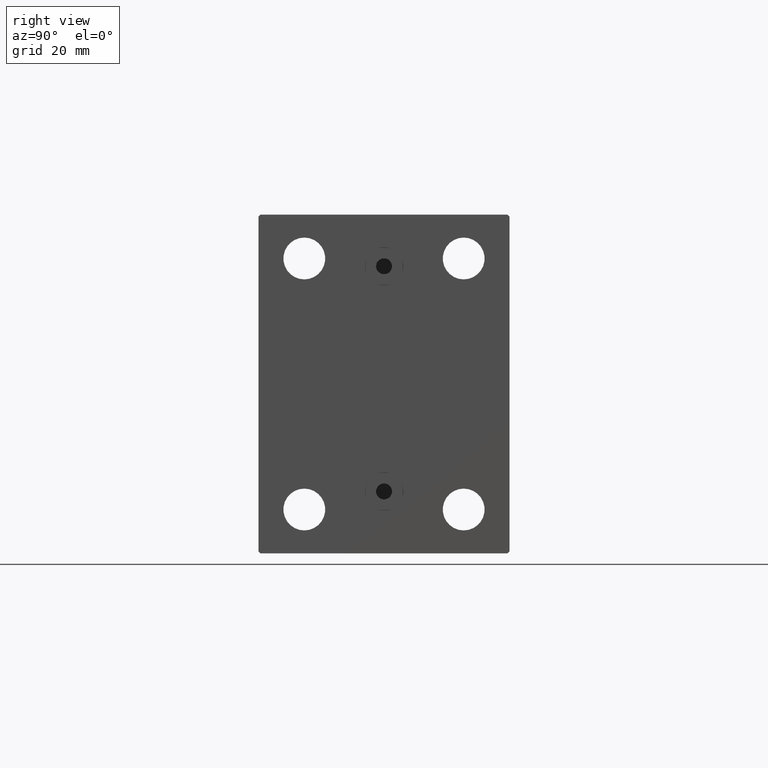
[diagram: clean part render]
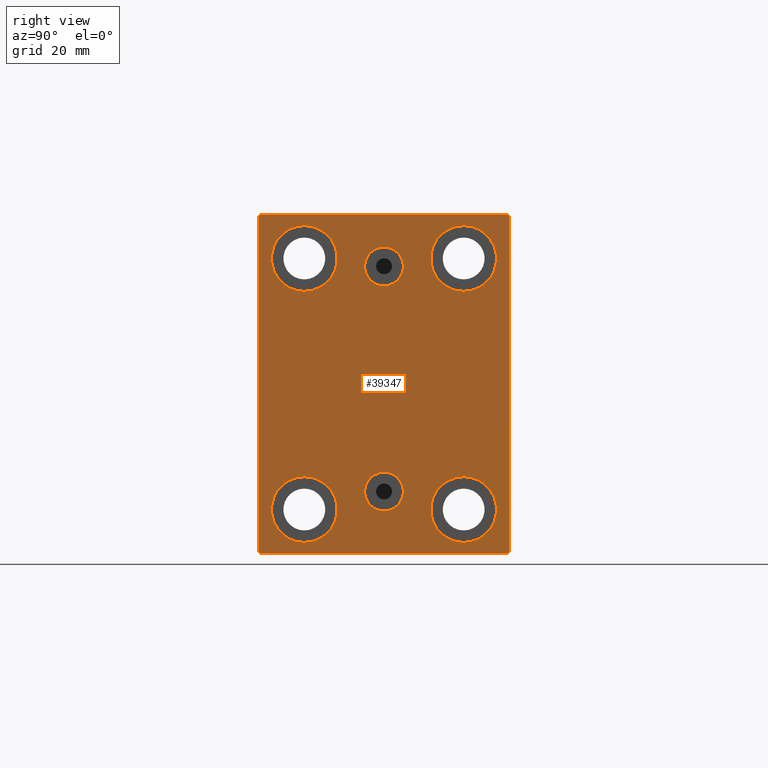
[diagram: same view with one face highlighted and labeled with its STEP entity id]
A machine part, right view. The second image highlights one B-rep face of the part: STEP entity #39347.
In plain terms, the highlighted planar face has unit normal (1, 0, 0).
Its self-contained STEP definition (entity closure, byte-faithful):
#455 = EDGE_CURVE ( 'NONE', #29882, #9703, #24271, .T. ) ;
#777 = VECTOR ( 'NONE', #39232, 1000.000000000000000 ) ;
#850 = VERTEX_POINT ( 'NONE', #5511 ) ;
#991 = ORIENTED_EDGE ( 'NONE', *, *, #8198, .T. ) ;
#1029 = EDGE_LOOP ( 'NONE', ( #33535, #16204, #42854, #6685, #42573, #3945, #6355, #30336 ) ) ;
#1147 = EDGE_CURVE ( 'NONE', #30440, #29882, #1790, .T. ) ;
#1790 = LINE ( 'NONE', #4325, #45080 ) ;
#1816 = DIRECTION ( 'NONE',  ( 0.000000000000000000, 0.000000000000000000, -1.000000000000000000 ) ) ;
#1879 = DIRECTION ( 'NONE',  ( -0.000000000000000000, 0.7071067811865474617, 0.7071067811865474617 ) ) ;
#1990 = CARTESIAN_POINT ( 'NONE',  ( 103.0000000000000000, -3.571693674697836683E-15, 24.64000000000001123 ) ) ;
#2532 = EDGE_CURVE ( 'NONE', #44313, #7735, #12869, .T. ) ;
#2791 = EDGE_CURVE ( 'NONE', #10545, #32653, #32359, .T. ) ;
#3060 = DIRECTION ( 'NONE',  ( 0.000000000000000000, 0.000000000000000000, 1.000000000000000000 ) ) ;
#3307 = CARTESIAN_POINT ( 'NONE',  ( 103.0000000000000000, 0.000000000000000000, 0.000000000000000000 ) ) ;
#3560 = EDGE_LOOP ( 'NONE', ( #7255, #17298 ) ) ;
#3589 = AXIS2_PLACEMENT_3D ( 'NONE', #39809, #26032, #43704 ) ;
#3945 = ORIENTED_EDGE ( 'NONE', *, *, #22882, .T. ) ;
#4117 = CIRCLE ( 'NONE', #17288, 4.859999999999999432 ) ;
#4325 = CARTESIAN_POINT ( 'NONE',  ( 103.0000000000000000, 31.50000000000000000, 42.50000000000000711 ) ) ;
#4342 = CARTESIAN_POINT ( 'NONE',  ( 103.0000000000000000, -36.75000000000000711, -36.75000000000000711 ) ) ;
#4489 = LINE ( 'NONE', #36399, #11652 ) ;
#4623 = EDGE_CURVE ( 'NONE', #7735, #44313, #4117, .T. ) ;
#5233 = DIRECTION ( 'NONE',  ( -1.000000000000000000, -0.000000000000000000, -0.000000000000000000 ) ) ;
#5239 = EDGE_CURVE ( 'NONE', #42268, #34300, #29820, .T. ) ;
#5282 = DIRECTION ( 'NONE',  ( 0.000000000000000000, 0.000000000000000000, 1.000000000000000000 ) ) ;
#5501 = CARTESIAN_POINT ( 'NONE',  ( 103.0000000000000000, -19.99999999999999645, 31.50000000000000000 ) ) ;
#5511 = CARTESIAN_POINT ( 'NONE',  ( 103.0000000000000000, 31.50000000000001421, -42.00000000000000711 ) ) ;
#5596 = VERTEX_POINT ( 'NONE', #31246 ) ;
#5662 = CIRCLE ( 'NONE', #29125, 8.249999999999992895 ) ;
#5854 = CARTESIAN_POINT ( 'NONE',  ( 103.0000000000000000, -19.99999999999999645, 23.25000000000000355 ) ) ;
#6295 = PLANE ( 'NONE',  #30657 ) ;
#6355 = ORIENTED_EDGE ( 'NONE', *, *, #20357, .T. ) ;
#6497 = VECTOR ( 'NONE', #17436, 1000.000000000000114 ) ;
#6685 = ORIENTED_EDGE ( 'NONE', *, *, #2791, .T. ) ;
#6753 = EDGE_LOOP ( 'NONE', ( #11797, #33977 ) ) ;
#6811 = ORIENTED_EDGE ( 'NONE', *, *, #33292, .T. ) ;
#6987 = VECTOR ( 'NONE', #23648, 1000.000000000000000 ) ;
#7031 = CARTESIAN_POINT ( 'NONE',  ( 103.0000000000000000, -36.74999999999998579, 36.74999999999998579 ) ) ;
#7067 = CARTESIAN_POINT ( 'NONE',  ( 103.0000000000000000, -30.99999999999998579, 42.49999999999999289 ) ) ;
#7194 = AXIS2_PLACEMENT_3D ( 'NONE', #31118, #21249, #14127 ) ;
#7255 = ORIENTED_EDGE ( 'NONE', *, *, #10780, .T. ) ;
#7735 = VERTEX_POINT ( 'NONE', #34235 ) ;
#7806 = CIRCLE ( 'NONE', #40810, 8.250000000000000000 ) ;
#8198 = EDGE_CURVE ( 'NONE', #34300, #42268, #5662, .T. ) ;
#8232 = VERTEX_POINT ( 'NONE', #25674 ) ;
#8507 = EDGE_LOOP ( 'NONE', ( #15335, #44574 ) ) ;
#8593 = AXIS2_PLACEMENT_3D ( 'NONE', #5501, #44074, #5282 ) ;
#9658 = CARTESIAN_POINT ( 'NONE',  ( 103.0000000000000000, 19.99999999999999645, -39.74999999999999289 ) ) ;
#9703 = VERTEX_POINT ( 'NONE', #41221 ) ;
#9733 = FACE_BOUND ( 'NONE', #19984, .T. ) ;
#9902 = CARTESIAN_POINT ( 'NONE',  ( 103.0000000000000000, -20.00000000000000355, -39.74999999999999289 ) ) ;
#10422 = DIRECTION ( 'NONE',  ( 1.000000000000000000, 0.000000000000000000, 0.000000000000000000 ) ) ;
#10545 = VERTEX_POINT ( 'NONE', #36214 ) ;
#10780 = EDGE_CURVE ( 'NONE', #39383, #34942, #34326, .T. ) ;
#11003 = LINE ( 'NONE', #31678, #777 ) ;
#11652 = VECTOR ( 'NONE', #25841, 1000.000000000000000 ) ;
#11797 = ORIENTED_EDGE ( 'NONE', *, *, #2532, .F. ) ;
#12377 = CARTESIAN_POINT ( 'NONE',  ( 103.0000000000000000, -3.571693674697836683E-15, 29.50000000000001066 ) ) ;
#12864 = DIRECTION ( 'NONE',  ( -1.000000000000000000, -0.000000000000000000, -0.000000000000000000 ) ) ;
#12869 = CIRCLE ( 'NONE', #18016, 4.859999999999999432 ) ;
#13259 = ORIENTED_EDGE ( 'NONE', *, *, #42408, .T. ) ;
#14127 = DIRECTION ( 'NONE',  ( 0.000000000000000000, 0.000000000000000000, 1.000000000000000000 ) ) ;
#15335 = ORIENTED_EDGE ( 'NONE', *, *, #40323, .F. ) ;
#15813 = CIRCLE ( 'NONE', #41469, 8.250000000000000000 ) ;
#16204 = ORIENTED_EDGE ( 'NONE', *, *, #455, .T. ) ;
#16579 = EDGE_CURVE ( 'NONE', #32653, #8232, #4489, .T. ) ;
#16632 = DIRECTION ( 'NONE',  ( 0.000000000000000000, 0.000000000000000000, 1.000000000000000000 ) ) ;
#16866 = FACE_BOUND ( 'NONE', #24594, .T. ) ;
#17288 = AXIS2_PLACEMENT_3D ( 'NONE', #12377, #33501, #1816 ) ;
#17298 = ORIENTED_EDGE ( 'NONE', *, *, #37772, .T. ) ;
#17436 = DIRECTION ( 'NONE',  ( -0.000000000000000000, -0.7071067811865474617, 0.7071067811865474617 ) ) ;
#18016 = AXIS2_PLACEMENT_3D ( 'NONE', #37038, #18914, #43477 ) ;
#18318 = CARTESIAN_POINT ( 'NONE',  ( 103.0000000000000000, 19.99999999999999645, -31.49999999999999289 ) ) ;
#18345 = CARTESIAN_POINT ( 'NONE',  ( 103.0000000000000000, 36.74999999999999289, 36.74999999999999289 ) ) ;
#18541 = DIRECTION ( 'NONE',  ( 0.000000000000000000, 0.000000000000000000, 1.000000000000000000 ) ) ;
#18914 = DIRECTION ( 'NONE',  ( 1.000000000000000000, 0.000000000000000000, 0.000000000000000000 ) ) ;
#19211 = VERTEX_POINT ( 'NONE', #9902 ) ;
#19350 = VERTEX_POINT ( 'NONE', #28278 ) ;
#19984 = EDGE_LOOP ( 'NONE', ( #13259, #6811 ) ) ;
#20306 = CARTESIAN_POINT ( 'NONE',  ( 103.0000000000000000, 3.306546357697852550E-15, -26.99999999999998934 ) ) ;
#20357 = EDGE_CURVE ( 'NONE', #850, #37512, #11003, .T. ) ;
#20533 = FACE_BOUND ( 'NONE', #6753, .T. ) ;
#20815 = DIRECTION ( 'NONE',  ( 0.000000000000000000, -0.7071067811865474617, -0.7071067811865474617 ) ) ;
#20964 = CARTESIAN_POINT ( 'NONE',  ( 103.0000000000000000, 20.00000000000000355, 31.50000000000000000 ) ) ;
#21121 = AXIS2_PLACEMENT_3D ( 'NONE', #20306, #30650, #16632 ) ;
#21249 = DIRECTION ( 'NONE',  ( -1.000000000000000000, -0.000000000000000000, -0.000000000000000000 ) ) ;
#21544 = VERTEX_POINT ( 'NONE', #32257 ) ;
#21558 = CARTESIAN_POINT ( 'NONE',  ( 103.0000000000000000, -31.00000000000000000, -42.50000000000000711 ) ) ;
#22332 = LINE ( 'NONE', #33332, #32365 ) ;
#22348 = AXIS2_PLACEMENT_3D ( 'NONE', #18318, #32323, #18541 ) ;
#22486 = DIRECTION ( 'NONE',  ( -0.000000000000000000, 0.7071067811865474617, -0.7071067811865474617 ) ) ;
#22882 = EDGE_CURVE ( 'NONE', #8232, #850, #22332, .T. ) ;
#23129 = CARTESIAN_POINT ( 'NONE',  ( 103.0000000000000000, 20.00000000000000355, 31.50000000000000000 ) ) ;
#23648 = DIRECTION ( 'NONE',  ( 0.000000000000000000, 0.000000000000000000, -1.000000000000000000 ) ) ;
#23976 = FACE_BOUND ( 'NONE', #38464, .T. ) ;
#24271 = LINE ( 'NONE', #7031, #34792 ) ;
#24446 = DIRECTION ( 'NONE',  ( 0.000000000000000000, 0.000000000000000000, 1.000000000000000000 ) ) ;
#24594 = EDGE_LOOP ( 'NONE', ( #35835, #991 ) ) ;
#25370 = VERTEX_POINT ( 'NONE', #9658 ) ;
#25674 = CARTESIAN_POINT ( 'NONE',  ( 103.0000000000000000, 31.00000000000001421, -42.50000000000000711 ) ) ;
#25841 = DIRECTION ( 'NONE',  ( 0.000000000000000000, 1.000000000000000000, 0.000000000000000000 ) ) ;
#26032 = DIRECTION ( 'NONE',  ( -1.000000000000000000, -0.000000000000000000, -0.000000000000000000 ) ) ;
#26374 = CARTESIAN_POINT ( 'NONE',  ( 103.0000000000000000, 20.00000000000000355, 23.25000000000000355 ) ) ;
#26802 = VECTOR ( 'NONE', #22486, 1000.000000000000114 ) ;
#27176 = EDGE_CURVE ( 'NONE', #5596, #21544, #42071, .T. ) ;
#27314 = LINE ( 'NONE', #41543, #6987 ) ;
#27605 = CARTESIAN_POINT ( 'NONE',  ( 103.0000000000000000, -19.99999999999999645, 39.74999999999999289 ) ) ;
#28278 = CARTESIAN_POINT ( 'NONE',  ( 103.0000000000000000, 19.99999999999999645, -23.24999999999999289 ) ) ;
#28378 = ORIENTED_EDGE ( 'NONE', *, *, #30164, .T. ) ;
#29125 = AXIS2_PLACEMENT_3D ( 'NONE', #23129, #5233, #30028 ) ;
#29820 = CIRCLE ( 'NONE', #30534, 8.249999999999992895 ) ;
#29882 = VERTEX_POINT ( 'NONE', #7067 ) ;
#30028 = DIRECTION ( 'NONE',  ( 0.000000000000000000, 0.000000000000000000, 1.000000000000000000 ) ) ;
#30102 = DIRECTION ( 'NONE',  ( 0.000000000000000000, 0.000000000000000000, 1.000000000000000000 ) ) ;
#30130 = CARTESIAN_POINT ( 'NONE',  ( 103.0000000000000000, 31.50000000000000000, 41.99999999999999289 ) ) ;
#30164 = EDGE_CURVE ( 'NONE', #19350, #25370, #40643, .T. ) ;
#30336 = ORIENTED_EDGE ( 'NONE', *, *, #40846, .T. ) ;
#30440 = VERTEX_POINT ( 'NONE', #38929 ) ;
#30534 = AXIS2_PLACEMENT_3D ( 'NONE', #20964, #31538, #3060 ) ;
#30650 = DIRECTION ( 'NONE',  ( 1.000000000000000000, 0.000000000000000000, -0.000000000000000000 ) ) ;
#30657 = AXIS2_PLACEMENT_3D ( 'NONE', #3307, #10422, #30875 ) ;
#30834 = DIRECTION ( 'NONE',  ( 0.000000000000000000, 0.000000000000000000, 1.000000000000000000 ) ) ;
#30875 = DIRECTION ( 'NONE',  ( 0.000000000000000000, 0.000000000000000000, -1.000000000000000000 ) ) ;
#31054 = CARTESIAN_POINT ( 'NONE',  ( 103.0000000000000000, 19.99999999999999645, -31.49999999999999289 ) ) ;
#31118 = CARTESIAN_POINT ( 'NONE',  ( 103.0000000000000000, -19.99999999999999645, 31.50000000000000000 ) ) ;
#31246 = CARTESIAN_POINT ( 'NONE',  ( 103.0000000000000000, 3.901724702083465828E-15, -22.13999999999999346 ) ) ;
#31538 = DIRECTION ( 'NONE',  ( -1.000000000000000000, -0.000000000000000000, -0.000000000000000000 ) ) ;
#31678 = CARTESIAN_POINT ( 'NONE',  ( 103.0000000000000000, 31.50000000000001421, -42.50000000000000711 ) ) ;
#32172 = CARTESIAN_POINT ( 'NONE',  ( 103.0000000000000000, 20.00000000000000355, 39.74999999999999289 ) ) ;
#32209 = VERTEX_POINT ( 'NONE', #33812 ) ;
#32257 = CARTESIAN_POINT ( 'NONE',  ( 103.0000000000000000, 3.306546357697852550E-15, -31.85999999999998522 ) ) ;
#32323 = DIRECTION ( 'NONE',  ( -1.000000000000000000, -0.000000000000000000, -0.000000000000000000 ) ) ;
#32359 = LINE ( 'NONE', #4342, #26802 ) ;
#32365 = VECTOR ( 'NONE', #1879, 1000.000000000000114 ) ;
#32556 = EDGE_CURVE ( 'NONE', #9703, #10545, #27314, .T. ) ;
#32653 = VERTEX_POINT ( 'NONE', #21558 ) ;
#33292 = EDGE_CURVE ( 'NONE', #32209, #19211, #15813, .T. ) ;
#33332 = CARTESIAN_POINT ( 'NONE',  ( 103.0000000000000000, 36.75000000000001421, -36.75000000000001421 ) ) ;
#33501 = DIRECTION ( 'NONE',  ( 1.000000000000000000, 0.000000000000000000, 0.000000000000000000 ) ) ;
#33535 = ORIENTED_EDGE ( 'NONE', *, *, #1147, .T. ) ;
#33812 = CARTESIAN_POINT ( 'NONE',  ( 103.0000000000000000, -20.00000000000000355, -23.24999999999999289 ) ) ;
#33977 = ORIENTED_EDGE ( 'NONE', *, *, #4623, .F. ) ;
#34086 = DIRECTION ( 'NONE',  ( 1.000000000000000000, 0.000000000000000000, -0.000000000000000000 ) ) ;
#34235 = CARTESIAN_POINT ( 'NONE',  ( 103.0000000000000000, -2.976515330312223011E-15, 34.36000000000000654 ) ) ;
#34300 = VERTEX_POINT ( 'NONE', #32172 ) ;
#34326 = CIRCLE ( 'NONE', #7194, 8.249999999999992895 ) ;
#34535 = FACE_BOUND ( 'NONE', #8507, .T. ) ;
#34792 = VECTOR ( 'NONE', #20815, 1000.000000000000114 ) ;
#34942 = VERTEX_POINT ( 'NONE', #27605 ) ;
#35117 = LINE ( 'NONE', #18345, #6497 ) ;
#35835 = ORIENTED_EDGE ( 'NONE', *, *, #5239, .T. ) ;
#35940 = EDGE_CURVE ( 'NONE', #25370, #19350, #7806, .T. ) ;
#36214 = CARTESIAN_POINT ( 'NONE',  ( 103.0000000000000000, -31.50000000000000000, -42.00000000000000711 ) ) ;
#36399 = CARTESIAN_POINT ( 'NONE',  ( 103.0000000000000000, -31.50000000000000000, -42.50000000000000711 ) ) ;
#36497 = CIRCLE ( 'NONE', #3589, 8.250000000000000000 ) ;
#37038 = CARTESIAN_POINT ( 'NONE',  ( 103.0000000000000000, -3.571693674697836683E-15, 29.50000000000001066 ) ) ;
#37208 = CARTESIAN_POINT ( 'NONE',  ( 103.0000000000000000, -20.00000000000000355, -31.49999999999999289 ) ) ;
#37512 = VERTEX_POINT ( 'NONE', #30130 ) ;
#37750 = FACE_OUTER_BOUND ( 'NONE', #1029, .T. ) ;
#37772 = EDGE_CURVE ( 'NONE', #34942, #39383, #38655, .T. ) ;
#37988 = CARTESIAN_POINT ( 'NONE',  ( 103.0000000000000000, 3.306546357697852550E-15, -26.99999999999998934 ) ) ;
#37991 = CIRCLE ( 'NONE', #21121, 4.859999999999995879 ) ;
#38464 = EDGE_LOOP ( 'NONE', ( #40317, #28378 ) ) ;
#38655 = CIRCLE ( 'NONE', #8593, 8.249999999999992895 ) ;
#38929 = CARTESIAN_POINT ( 'NONE',  ( 103.0000000000000000, 30.99999999999998579, 42.50000000000000711 ) ) ;
#39114 = AXIS2_PLACEMENT_3D ( 'NONE', #37988, #34086, #24446 ) ;
#39232 = DIRECTION ( 'NONE',  ( 0.000000000000000000, -1.632680918566406300E-16, 1.000000000000000000 ) ) ;
#39347 = ADVANCED_FACE ( 'NONE', ( #20533, #34535, #23976, #41202, #16866, #9733, #37750 ), #6295, .T. ) ;
#39383 = VERTEX_POINT ( 'NONE', #5854 ) ;
#39680 = DIRECTION ( 'NONE',  ( 0.000000000000000000, -1.000000000000000000, -2.202823461557850341E-16 ) ) ;
#39809 = CARTESIAN_POINT ( 'NONE',  ( 103.0000000000000000, -20.00000000000000355, -31.49999999999999289 ) ) ;
#40317 = ORIENTED_EDGE ( 'NONE', *, *, #35940, .T. ) ;
#40323 = EDGE_CURVE ( 'NONE', #21544, #5596, #37991, .T. ) ;
#40643 = CIRCLE ( 'NONE', #22348, 8.250000000000000000 ) ;
#40810 = AXIS2_PLACEMENT_3D ( 'NONE', #31054, #45049, #30834 ) ;
#40846 = EDGE_CURVE ( 'NONE', #37512, #30440, #35117, .T. ) ;
#41202 = FACE_BOUND ( 'NONE', #3560, .T. ) ;
#41221 = CARTESIAN_POINT ( 'NONE',  ( 103.0000000000000000, -31.50000000000000000, 41.99999999999997868 ) ) ;
#41469 = AXIS2_PLACEMENT_3D ( 'NONE', #37208, #12864, #30102 ) ;
#41543 = CARTESIAN_POINT ( 'NONE',  ( 103.0000000000000000, -31.50000000000000000, 42.49999999999999289 ) ) ;
#42071 = CIRCLE ( 'NONE', #39114, 4.859999999999995879 ) ;
#42268 = VERTEX_POINT ( 'NONE', #26374 ) ;
#42408 = EDGE_CURVE ( 'NONE', #19211, #32209, #36497, .T. ) ;
#42573 = ORIENTED_EDGE ( 'NONE', *, *, #16579, .T. ) ;
#42854 = ORIENTED_EDGE ( 'NONE', *, *, #32556, .T. ) ;
#43477 = DIRECTION ( 'NONE',  ( 0.000000000000000000, 0.000000000000000000, -1.000000000000000000 ) ) ;
#43704 = DIRECTION ( 'NONE',  ( 0.000000000000000000, 0.000000000000000000, 1.000000000000000000 ) ) ;
#44074 = DIRECTION ( 'NONE',  ( -1.000000000000000000, -0.000000000000000000, -0.000000000000000000 ) ) ;
#44313 = VERTEX_POINT ( 'NONE', #1990 ) ;
#44574 = ORIENTED_EDGE ( 'NONE', *, *, #27176, .F. ) ;
#45049 = DIRECTION ( 'NONE',  ( -1.000000000000000000, -0.000000000000000000, -0.000000000000000000 ) ) ;
#45080 = VECTOR ( 'NONE', #39680, 1000.000000000000000 ) ;